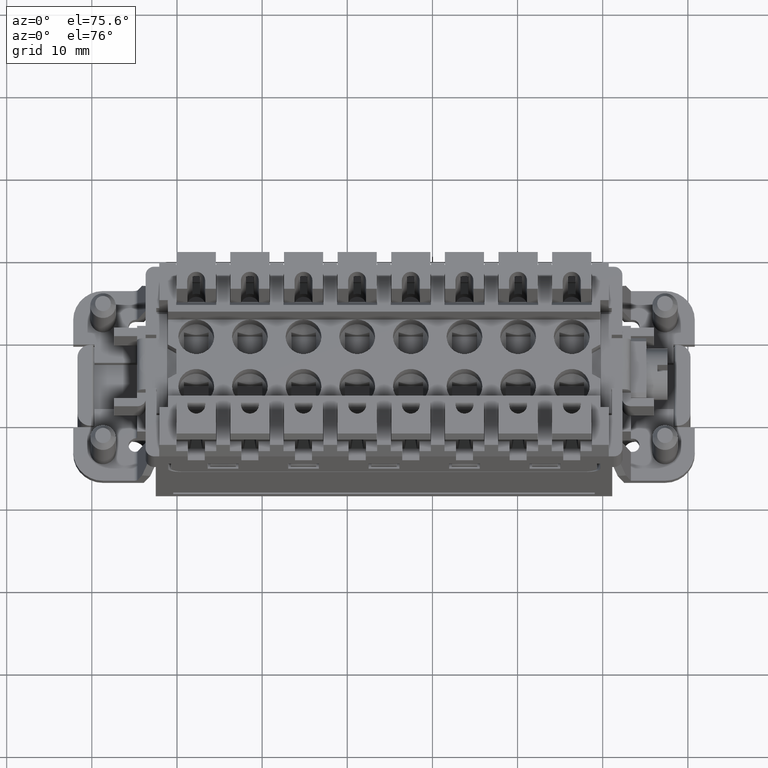
[diagram: clean part render]
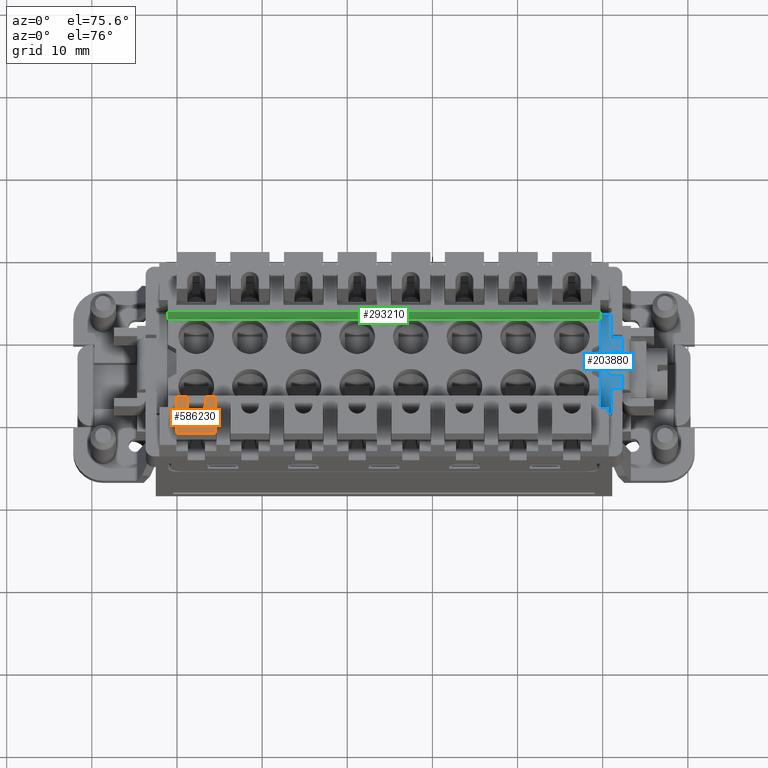
[diagram: same view with three faces highlighted in distinct colors, each labeled with its STEP entity id]
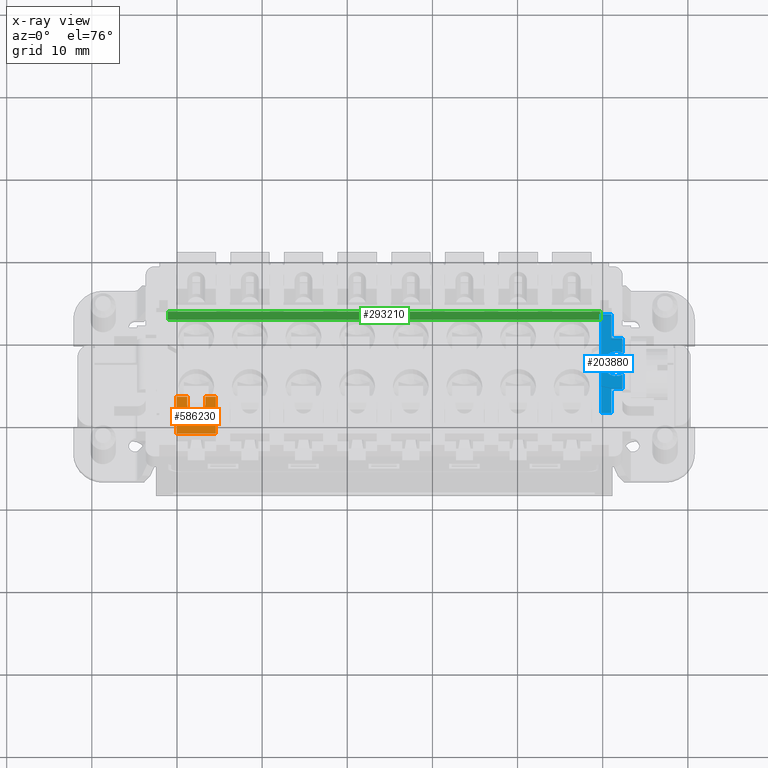
[diagram: x-ray of the same camera — body ghosted, the three highlighted faces saturated]
A machine part, auxiliary view with three faces highlighted in distinct colors.
The next image is the same camera in x-ray (body ghosted, the three faces saturated) — at least one of them is partly hidden behind the body in this view.
Their STEP definitions:

[orange] entity #586230 — the highlighted planar face has unit normal (0, -0, 1).
#145620=CARTESIAN_POINT('',(64.8956520000992,47.0336120024944,
20.0999999999916));
#145630=VERTEX_POINT('',#145620);
#145660=CARTESIAN_POINT('',(64.8956520000997,0.,20.0999999999916));
#145670=DIRECTION('',(-1.0725888458399E-14,1.,2.4492935984429E-16));
#145680=VECTOR('',#145670,1.);
#145690=LINE('',#145660,#145680);
#145700=CARTESIAN_POINT('',(64.8956520000992,42.5791811243015,
20.0999999999916));
#145710=VERTEX_POINT('',#145700);
#145720=EDGE_CURVE('',#145710,#145630,#145690,.T.);
#224690=CARTESIAN_POINT('',(69.4956520000993,42.579181124301,
20.0999999999845));
#224700=VERTEX_POINT('',#224690);
#224730=CARTESIAN_POINT('',(69.4956520000997,0.,20.0999999999845));
#224740=DIRECTION('',(1.0725888458399E-14,-1.,-2.4492935984429E-16));
#224750=VECTOR('',#224740,1.);
#224760=LINE('',#224730,#224750);
#224770=CARTESIAN_POINT('',(69.4956520000992,47.0336120024945,
20.0999999999845));
#224780=VERTEX_POINT('',#224770);
#224790=EDGE_CURVE('',#224780,#224700,#224760,.T.);
#254740=CARTESIAN_POINT('',(0.,42.5791811243089,20.1000000000912));
#254750=DIRECTION('',(1.,-1.13172105883373E-13,-1.53521866215071E-12));
#254760=VECTOR('',#254750,1.);
#254770=LINE('',#254740,#254760);
#254780=EDGE_CURVE('',#145710,#224700,#254770,.T.);
#585740=CARTESIAN_POINT('',(67.6026211477435,44.2861482391601,
20.0999999999874));
#585750=DIRECTION('',(1.53521866215071E-12,-2.44929359827823E-16,1.));
#585760=DIRECTION('',(1.,1.07258884583994E-14,-1.53521866215071E-12));
#585770=AXIS2_PLACEMENT_3D('',#585740,#585750,#585760);
#585780=PLANE('',#585770);
#585790=CARTESIAN_POINT('',(0.,47.0336120024923,20.1000000000912));
#585800=DIRECTION('',(-1.,-3.13316277954423E-14,1.53521866215071E-12));
#585810=VECTOR('',#585800,1.);
#585820=LINE('',#585790,#585810);
#585830=CARTESIAN_POINT('',(66.1456520000992,47.0336120024944,
20.0999999999897));
#585840=VERTEX_POINT('',#585830);
#585850=EDGE_CURVE('',#585840,#145630,#585820,.T.);
#585860=ORIENTED_EDGE('',*,*,#585850,.T.);
#585870=CARTESIAN_POINT('',(66.1456520000997,0.,20.0999999999896));
#585880=DIRECTION('',(-1.0725888458399E-14,1.,2.4492935984429E-16));
#585890=VECTOR('',#585880,1.);
#585900=LINE('',#585870,#585890);
#585910=CARTESIAN_POINT('',(66.1456520000992,46.0336120024944,
20.0999999999897));
#585920=VERTEX_POINT('',#585910);
#585930=EDGE_CURVE('',#585920,#585840,#585900,.T.);
#585940=ORIENTED_EDGE('',*,*,#585930,.T.);
#585950=CARTESIAN_POINT('',(67.1956520000992,46.0336120024944,
20.099999999988));
#585960=DIRECTION('',(1.53521866215071E-12,-2.44929359827823E-16,1.));
#585970=DIRECTION('',(-1.,-1.07258884583994E-14,1.53521866215071E-12));
#585980=AXIS2_PLACEMENT_3D('',#585950,#585960,#585970);
#585990=CIRCLE('',#585980,1.05);
#586000=CARTESIAN_POINT('',(68.2456520000992,46.0336120024945,
20.0999999999864));
#586010=VERTEX_POINT('',#586000);
#586020=EDGE_CURVE('',#585920,#586010,#585990,.T.);
#586030=ORIENTED_EDGE('',*,*,#586020,.F.);
#586040=CARTESIAN_POINT('',(68.2456520000997,0.,20.0999999999864));
#586050=DIRECTION('',(1.0725888458399E-14,-1.,-2.4492935984429E-16));
#586060=VECTOR('',#586050,1.);
#586070=LINE('',#586040,#586060);
#586080=CARTESIAN_POINT('',(68.2456520000992,47.0336120024945,
20.0999999999864));
#586090=VERTEX_POINT('',#586080);
#586100=EDGE_CURVE('',#586090,#586010,#586070,.T.);
#586110=ORIENTED_EDGE('',*,*,#586100,.T.);
#586120=CARTESIAN_POINT('',(0.,47.0336120024923,20.1000000000912));
#586130=DIRECTION('',(-1.,-3.13316277954423E-14,1.53521866215071E-12));
#586140=VECTOR('',#586130,1.);
#586150=LINE('',#586120,#586140);
#586160=EDGE_CURVE('',#224780,#586090,#586150,.T.);
#586170=ORIENTED_EDGE('',*,*,#586160,.T.);
#586180=ORIENTED_EDGE('',*,*,#224790,.F.);
#586190=ORIENTED_EDGE('',*,*,#254780,.T.);
#586200=ORIENTED_EDGE('',*,*,#145720,.F.);
#586210=EDGE_LOOP('',(#586200,#586190,#586180,#586170,#586110,#586030,
#585940,#585860));
#586220=FACE_OUTER_BOUND('',#586210,.T.);
#586230=ADVANCED_FACE('',(#586220),#585780,.T.);

[blue] entity #203880 — the highlighted planar face has unit normal (0, -0, 1).
#85570=CARTESIAN_POINT('',(115.945652000001,56.683612,10.1999999999997))
;
#85580=DIRECTION('',(1.00202798155402E-14,1.,3.6124255799288E-16));
#85590=VECTOR('',#85580,1.);
#85600=LINE('',#85570,#85590);
#85610=CARTESIAN_POINT('',(115.945652000001,56.683612,10.1999999999997))
;
#85620=VERTEX_POINT('',#85610);
#85630=CARTESIAN_POINT('',(115.945652000001,59.583612,10.1999999999997))
;
#85640=VERTEX_POINT('',#85630);
#85650=EDGE_CURVE('',#85620,#85640,#85600,.T.);
#203130=CARTESIAN_POINT('',(105.784871443112,45.0836120000001,
10.1999999999997));
#203140=DIRECTION('',(1.57715611723761E-15,-3.61242557992896E-16,1.));
#203150=DIRECTION('',(1.00202798155402E-14,1.,3.6124255799288E-16));
#203160=AXIS2_PLACEMENT_3D('',#203130,#203140,#203150);
#203170=PLANE('',#203160);
#203180=CARTESIAN_POINT('',(116.522632625428,53.583612,10.1999999999997)
);
#203190=DIRECTION('',(0.,0.,1.));
#203200=DIRECTION('',(1.00202798155402E-14,1.,0.));
#203210=AXIS2_PLACEMENT_3D('',#203180,#203190,#203200);
#203220=CIRCLE('',#203210,1.5057931011511);
#203230=CARTESIAN_POINT('',(117.245652,54.9044662112839,10.1999999999997
));
#203240=VERTEX_POINT('',#203230);
#203250=CARTESIAN_POINT('',(117.245652,52.2627577887158,10.1999999999997
));
#203260=VERTEX_POINT('',#203250);
#203270=EDGE_CURVE('',#203240,#203260,#203220,.T.);
#203280=ORIENTED_EDGE('',*,*,#203270,.F.);
#203290=CARTESIAN_POINT('',(117.245652,9.58417761085969,10.1999999999997
));
#203300=DIRECTION('',(1.00202798155402E-14,1.,3.6124255799288E-16));
#203310=VECTOR('',#203300,1.);
#203320=LINE('',#203290,#203310);
#203330=CARTESIAN_POINT('',(117.245652,50.483612,10.1999999999997));
#203340=VERTEX_POINT('',#203330);
#203350=EDGE_CURVE('',#203340,#203260,#203320,.T.);
#203360=ORIENTED_EDGE('',*,*,#203350,.T.);
#203370=CARTESIAN_POINT('',(115.945652,50.483612,10.1999999999997));
#203380=DIRECTION('',(1.,-1.77435704216283E-14,-1.57715611723761E-15));
#203390=VECTOR('',#203380,1.);
#203400=LINE('',#203370,#203390);
#203410=CARTESIAN_POINT('',(115.945652,50.483612,10.1999999999997));
#203420=VERTEX_POINT('',#203410);
#203430=EDGE_CURVE('',#203420,#203340,#203400,.T.);
#203440=ORIENTED_EDGE('',*,*,#203430,.T.);
#203450=CARTESIAN_POINT('',(115.945652,47.583612,10.1999999999997));
#203460=DIRECTION('',(1.00202798155402E-14,1.,3.6124255799288E-16));
#203470=VECTOR('',#203460,1.);
#203480=LINE('',#203450,#203470);
#203490=CARTESIAN_POINT('',(115.945652,47.583612,10.1999999999997));
#203500=VERTEX_POINT('',#203490);
#203510=EDGE_CURVE('',#203500,#203420,#203480,.T.);
#203520=ORIENTED_EDGE('',*,*,#203510,.T.);
#203530=CARTESIAN_POINT('',(114.745652,47.583612,10.1999999999997));
#203540=DIRECTION('',(1.,-1.00202798155402E-14,-1.57715611723761E-15));
#203550=VECTOR('',#203540,1.);
#203560=LINE('',#203530,#203550);
#203570=CARTESIAN_POINT('',(114.745652,47.583612,10.1999999999997));
#203580=VERTEX_POINT('',#203570);
#203590=EDGE_CURVE('',#203580,#203500,#203560,.T.);
#203600=ORIENTED_EDGE('',*,*,#203590,.T.);
#203610=CARTESIAN_POINT('',(114.745652000001,59.583612,10.1999999999997)
);
#203620=DIRECTION('',(-1.00202798155402E-14,-1.,-3.6124255799288E-16));
#203630=VECTOR('',#203620,1.);
#203640=LINE('',#203610,#203630);
#203650=CARTESIAN_POINT('',(114.745652000001,59.583612,10.1999999999997)
);
#203660=VERTEX_POINT('',#203650);
#203670=EDGE_CURVE('',#203660,#203580,#203640,.T.);
#203680=ORIENTED_EDGE('',*,*,#203670,.T.);
#203690=CARTESIAN_POINT('',(115.945652000001,59.583612,10.1999999999997)
);
#203700=DIRECTION('',(-1.,1.00202798155402E-14,1.57715611723761E-15));
#203710=VECTOR('',#203700,1.);
#203720=LINE('',#203690,#203710);
#203730=EDGE_CURVE('',#85640,#203660,#203720,.T.);
#203740=ORIENTED_EDGE('',*,*,#203730,.T.);
#203750=ORIENTED_EDGE('',*,*,#85650,.T.);
#203760=CARTESIAN_POINT('',(118.245652000001,56.683612,10.1999999999997)
);
#203770=DIRECTION('',(-1.,1.61989123004106E-14,1.57715611723761E-15));
#203780=VECTOR('',#203770,1.);
#203790=LINE('',#203760,#203780);
#203800=CARTESIAN_POINT('',(117.245652000001,56.683612,10.1999999999997)
);
#203810=VERTEX_POINT('',#203800);
#203820=EDGE_CURVE('',#203810,#85620,#203790,.T.);
#203830=ORIENTED_EDGE('',*,*,#203820,.T.);
#203840=EDGE_CURVE('',#203240,#203810,#203320,.T.);
#203850=ORIENTED_EDGE('',*,*,#203840,.T.);
#203860=EDGE_LOOP('',(#203850,#203830,#203750,#203740,#203680,#203600,
#203520,#203440,#203360,#203280));
#203870=FACE_OUTER_BOUND('',#203860,.T.);
#203880=ADVANCED_FACE('',(#203870),#203170,.T.);

[green] entity #293210 — the highlighted planar face has unit normal (0, -1, -0).
#187020=CARTESIAN_POINT('',(111.29565200007,58.6836120000021,
11.1999999999222));
#187030=VERTEX_POINT('',#187020);
#244480=CARTESIAN_POINT('',(92.3956520000697,58.6836120000022,
11.1999999999396));
#244490=VERTEX_POINT('',#244480);
#255480=CARTESIAN_POINT('',(79.7956520000697,58.683612000002,
11.1999999999512));
#255490=VERTEX_POINT('',#255480);
#290390=CARTESIAN_POINT('',(86.0956520000697,58.6836120000022,
11.1999999999454));
#290400=VERTEX_POINT('',#290390);
#292580=CARTESIAN_POINT('',(59.7956520000754,58.6836120000018,
14.4999999999696));
#292590=DIRECTION('',(1.07691633388639E-14,-1.,-8.1077072440021E-27));
#292600=DIRECTION('',(-1.,-1.07691633388639E-14,9.21635456471626E-13));
#292610=AXIS2_PLACEMENT_3D('',#292580,#292590,#292600);
#292620=PLANE('',#292610);
#292630=CARTESIAN_POINT('',(95.5455256736933,58.6836120000022,
11.1999999999367));
#292640=DIRECTION('',(-1.,-1.07691633388639E-14,9.21630854830125E-13));
#292650=VECTOR('',#292640,1.);
#292660=LINE('',#292630,#292650);
#292670=CARTESIAN_POINT('',(114.645651999824,58.6836120000024,
11.1999999999191));
#292680=VERTEX_POINT('',#292670);
#292690=EDGE_CURVE('',#292680,#187030,#292660,.T.);
#292700=ORIENTED_EDGE('',*,*,#292690,.F.);
#292710=CARTESIAN_POINT('',(104.99565200007,58.6836120000023,
11.199999999928));
#292720=VERTEX_POINT('',#292710);
#292730=EDGE_CURVE('',#187030,#292720,#292660,.T.);
#292740=ORIENTED_EDGE('',*,*,#292730,.F.);
#292750=CARTESIAN_POINT('',(98.6956520000697,58.6836120000021,
11.1999999999338));
#292760=VERTEX_POINT('',#292750);
#292770=EDGE_CURVE('',#292720,#292760,#292660,.T.);
#292780=ORIENTED_EDGE('',*,*,#292770,.F.);
#292790=EDGE_CURVE('',#292760,#244490,#292660,.T.);
#292800=ORIENTED_EDGE('',*,*,#292790,.F.);
#292810=EDGE_CURVE('',#244490,#290400,#292660,.T.);
#292820=ORIENTED_EDGE('',*,*,#292810,.F.);
#292830=EDGE_CURVE('',#290400,#255490,#292660,.T.);
#292840=ORIENTED_EDGE('',*,*,#292830,.F.);
#292850=CARTESIAN_POINT('',(73.4956520000697,58.683612000002,
11.199999999957));
#292860=VERTEX_POINT('',#292850);
#292870=EDGE_CURVE('',#255490,#292860,#292660,.T.);
#292880=ORIENTED_EDGE('',*,*,#292870,.F.);
#292890=CARTESIAN_POINT('',(67.1956520000697,58.6836120000022,
11.1999999999628));
#292900=VERTEX_POINT('',#292890);
#292910=EDGE_CURVE('',#292860,#292900,#292660,.T.);
#292920=ORIENTED_EDGE('',*,*,#292910,.F.);
#292930=CARTESIAN_POINT('',(63.8456520000168,58.6836120000019,
11.1999999999659));
#292940=VERTEX_POINT('',#292930);
#292950=EDGE_CURVE('',#292900,#292940,#292660,.T.);
#292960=ORIENTED_EDGE('',*,*,#292950,.F.);
#292970=CARTESIAN_POINT('',(63.8456519999962,58.6836120000019,0.));
#292980=DIRECTION('',(1.8425116322356E-12,1.17130067207216E-26,1.));
#292990=VECTOR('',#292980,1.);
#293000=LINE('',#292970,#292990);
#293010=CARTESIAN_POINT('',(63.8456520000236,58.6836120000019,
14.8999999999659));
#293020=VERTEX_POINT('',#293010);
#293030=EDGE_CURVE('',#292940,#293020,#293000,.T.);
#293040=ORIENTED_EDGE('',*,*,#293030,.F.);
#293050=CARTESIAN_POINT('',(0.,58.6836120000012,14.9000000000247));
#293060=DIRECTION('',(1.,1.07691633388638E-14,-9.21635456471625E-13));
#293070=VECTOR('',#293060,1.);
#293080=LINE('',#293050,#293070);
#293090=CARTESIAN_POINT('',(114.645651999823,58.6836120000024,
14.8999999999191));
#293100=VERTEX_POINT('',#293090);
#293110=EDGE_CURVE('',#293020,#293100,#293080,.T.);
#293120=ORIENTED_EDGE('',*,*,#293110,.F.);
#293130=CARTESIAN_POINT('',(114.645651999828,58.6836120000024,0.));
#293140=DIRECTION('',(3.07149258579016E-13,1.14353276820838E-26,-1.));
#293150=VECTOR('',#293140,1.);
#293160=LINE('',#293130,#293150);
#293170=EDGE_CURVE('',#293100,#292680,#293160,.T.);
#293180=ORIENTED_EDGE('',*,*,#293170,.F.);
#293190=EDGE_LOOP('',(#293180,#293120,#293040,#292960,#292920,#292880,
#292840,#292820,#292800,#292780,#292740,#292700));
#293200=FACE_OUTER_BOUND('',#293190,.T.);
#293210=ADVANCED_FACE('',(#293200),#292620,.T.);